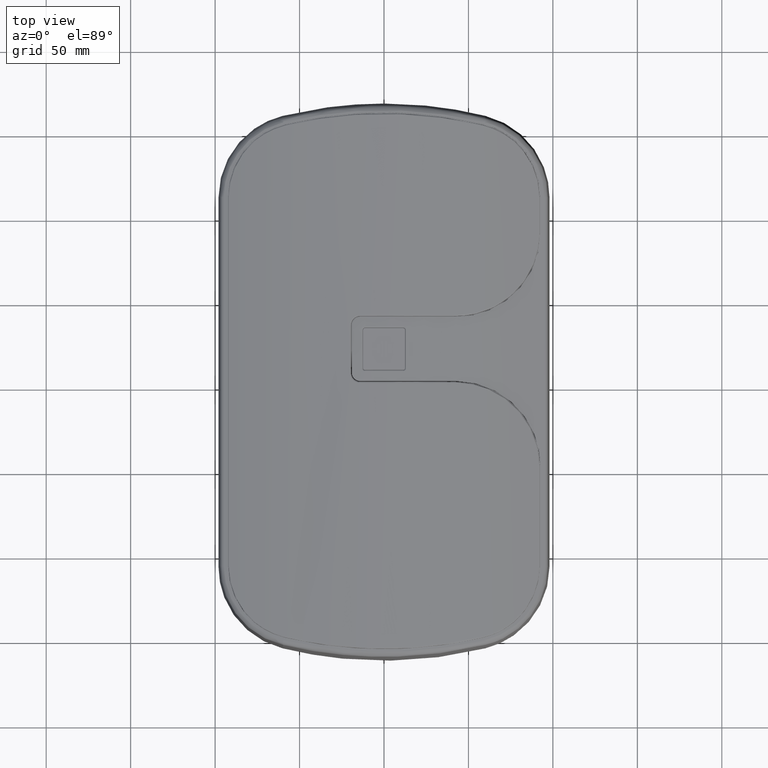
[diagram: clean part render]
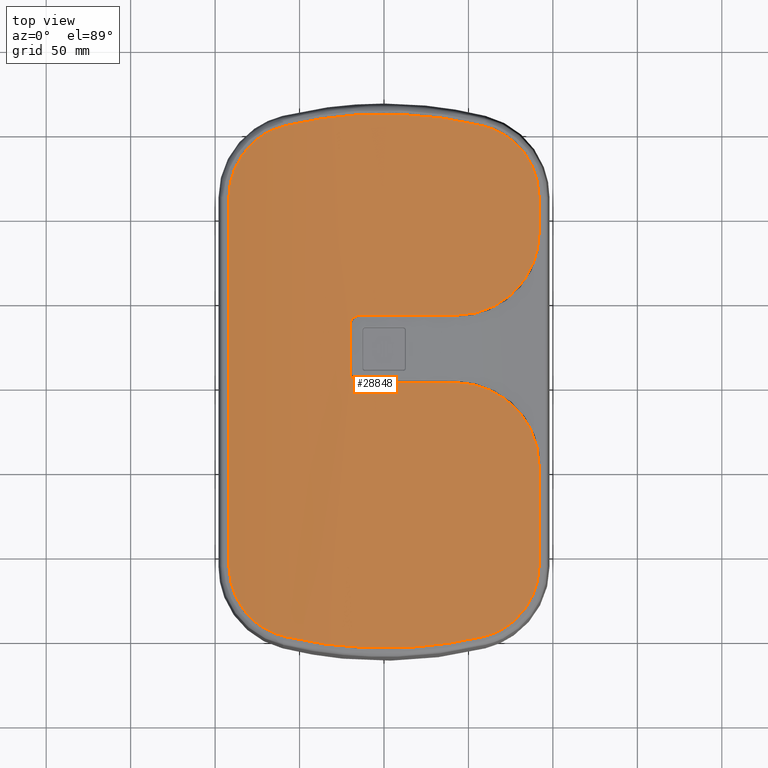
[diagram: same view with one face highlighted and labeled with its STEP entity id]
A machine part, top view. The second image highlights one B-rep face of the part: STEP entity #28848.
In plain terms, the highlighted cylindrical surface (partial cylindrical patch) has radius 340.833 mm, axis along (-0, -1, -0).
Its self-contained STEP definition (entity closure, byte-faithful):
#180 = B_SPLINE_CURVE_WITH_KNOTS ( 'NONE', 3,
 ( #18900, #15692, #16213, #29681, #34477, #10530, #28996, #21549, #1986, #4647, #18728, #16023, #20880, #4998, #23704, #5170, #24210, #23864, #10350 ),
 .UNSPECIFIED., .F., .F.,
 ( 4, 2, 1, 1, 2, 2, 1, 1, 1, 2, 2, 4 ),
 ( 0.0000000000000000000, 0.2499999999999925615, 0.3749999999999895639, 0.4374999999999872879, 0.4687499999999863998, 0.4999999999999854561, 0.6249999999999800160, 0.6874999999999780176, 0.7187499999999769074, 0.7343749999999762412, 0.7499999999999755751, 1.000000000000000000 ),
 .UNSPECIFIED. ) ;
#210 = B_SPLINE_CURVE_WITH_KNOTS ( 'NONE', 3,
 ( #6044, #30554, #9239, #6389, #8701, #33562, #14242, #33209, #1402, #23128, #17619, #25763, #30913, #11573, #17081, #3554, #27896, #31084, #4088, #33385, #22424, #30372, #22605, #9428, #28428, #25243, #25064, #25588, #14946, #12292, #685, #22775, #875, #11764, #19948 ),
 .UNSPECIFIED., .F., .F.,
 ( 4, 2, 1, 2, 2, 2, 2, 2, 2, 2, 2, 2, 2, 2, 2, 2, 2, 4 ),
 ( 0.0000000000000000000, 0.06250000000000177636, 0.09375000000000263678, 0.1093750000000031086, 0.1250000000000035805, 0.1875000000000033029, 0.2187500000000025258, 0.2500000000000017208, 0.3125000000000009992, 0.3750000000000002776, 0.4374999999999995559, 0.4687499999999992784, 0.4999999999999990008, 0.5624999999999984457, 0.5937499999999984457, 0.6249999999999984457, 0.7499999999999990008, 1.000000000000000000 ),
 .UNSPECIFIED. ) ;
#238 = LINE ( 'NONE', #6123, #13790 ) ;
#308 = CARTESIAN_POINT ( 'NONE',  ( 76.68799918922830727, 193.9389659264971328, 271.0104957620693540 ) ) ;
#357 = CARTESIAN_POINT ( 'NONE',  ( 87.36874724670538228, 22.23769931428293489, 268.3623747308501493 ) ) ;
#418 = CARTESIAN_POINT ( 'NONE',  ( -17.37425418541295130, 209.3244417288601653, 279.3158274080151386 ) ) ;
#584 = CARTESIAN_POINT ( 'NONE',  ( 24.61649829016718982, 208.7567562130933538, 278.8959626620090830 ) ) ;
#634 = CARTESIAN_POINT ( 'NONE',  ( -90.76280142288830177, 170.4103326434474752, 267.4428839949293319 ) ) ;
#638 = CARTESIAN_POINT ( 'NONE',  ( 68.40734883334357619, 199.4377215384564863, 272.8146044250892146 ) ) ;
#682 = CARTESIAN_POINT ( 'NONE',  ( -29.70508391770396273, -104.5902902735330855, 278.4531051502877403 ) ) ;
#685 = CARTESIAN_POINT ( 'NONE',  ( -84.80941922142089595, -81.10653978289654731, 269.0309098637925445 ) ) ;
#760 = CARTESIAN_POINT ( 'NONE',  ( -91.80039823595464554, 716.8257402209086422, 267.1544585109640479 ) ) ;
#768 = CARTESIAN_POINT ( 'NONE',  ( -39.40837156193342850, 207.0178400503037324, 277.6047847346223989 ) ) ;
#821 = CARTESIAN_POINT ( 'NONE',  ( -90.63298227369914173, 170.9805897523463614, 267.4787267460807243 ) ) ;
#875 = CARTESIAN_POINT ( 'NONE',  ( -81.14456246344516899, -86.09783526985506796, 269.9553588846289927 ) ) ;
#892 = CARTESIAN_POINT ( 'NONE',  ( 91.62914806645278532, 5.897594693806634147, 267.2023055332355170 ) ) ;
#895 = CARTESIAN_POINT ( 'NONE',  ( 65.10626593037738985, 96.21806662829801837, 273.4740860651526191 ) ) ;
#925 = CARTESIAN_POINT ( 'NONE',  ( 82.06775386203671019, -84.86934508408329236, 269.7235336977278735 ) ) ;
#958 = CARTESIAN_POINT ( 'NONE',  ( -29.06866651269853108, 208.2359990475847553, 278.5081823524531615 ) ) ;
#1010 = CARTESIAN_POINT ( 'NONE',  ( -83.92475419055244856, 185.9471982838221606, 269.2561863649057727 ) ) ;
#1086 = CARTESIAN_POINT ( 'NONE',  ( 79.04313283722761696, 191.9087714289362623, 270.4666428284601238 ) ) ;
#1177 = CARTESIAN_POINT ( 'NONE',  ( -18.88950869241952901, 88.49497091314722752, 279.2262256043080129 ) ) ;
#1356 = CARTESIAN_POINT ( 'NONE',  ( -87.12384022147475093, 180.6153879183635240, 268.4268167469981563 ) ) ;
#1402 = CARTESIAN_POINT ( 'NONE',  ( -91.45593707571909192, -62.91477150450725020, 267.2506133946380942 ) ) ;
#1416 = CARTESIAN_POINT ( 'NONE',  ( 52.67000237479042823, 49.81003932491675812, 275.6558401828824572 ) ) ;
#1432 = CARTESIAN_POINT ( 'NONE',  ( 87.13276900156556337, 180.5953604990357917, 268.4244563308851070 ) ) ;
#1436 = CARTESIAN_POINT ( 'NONE',  ( -14.31743432733208721, 50.82574022090865640, 279.4492068892120074 ) ) ;
#1496 = CARTESIAN_POINT ( 'NONE',  ( -76.67944016011402653, -90.37711716577501875, 271.0124728105930103 ) ) ;
#1573 = CARTESIAN_POINT ( 'NONE',  ( 9.976607764461711270, -106.1915144008146399, 279.6397174452580998 ) ) ;
#1701 = CARTESIAN_POINT ( 'NONE',  ( -17.78010489295164831, 89.58719500805307234, 279.2859542890566900 ) ) ;
#1766 = CARTESIAN_POINT ( 'NONE',  ( 82.65086082515425403, 111.3277722993156686, 269.5770601667944675 ) ) ;
#1779 = CARTESIAN_POINT ( 'NONE',  ( 86.39960574663949444, 181.9708492919632477, 268.6173014622281698 ) ) ;
#1962 = CARTESIAN_POINT ( 'NONE',  ( -20.12952987267379257, 56.82574022090877719, 279.1550582955427444 ) ) ;
#1976 = CARTESIAN_POINT ( 'NONE',  ( 90.63367163953246575, -67.40852314878009111, 267.4785365789553566 ) ) ;
#1986 = CARTESIAN_POINT ( 'NONE',  ( 67.93218113800165270, -96.10806116518594422, 272.9116025135941186 ) ) ;
#2290 = CARTESIAN_POINT ( 'NONE',  ( 72.52278384399234312, 100.8944758625074343, 271.9450602917116839 ) ) ;
#2651 = VERTEX_POINT ( 'NONE', #28267 ) ;
#2701 = CARTESIAN_POINT ( 'NONE',  ( -73.94742326272721300, 196.1074039615511992, 271.6347033646500222 ) ) ;
#2706 = CARTESIAN_POINT ( 'NONE',  ( 91.80039823595328130, 716.8257402209086422, 267.1544585109644458 ) ) ;
#3032 = CARTESIAN_POINT ( 'NONE',  ( 83.51476960828456697, 29.07257103280700505, 269.3597898726873723 ) ) ;
#3095 = CARTESIAN_POINT ( 'NONE',  ( 8.550862452208136233, 209.7855142365778534, 279.6584254422802474 ) ) ;
#3323 = CARTESIAN_POINT ( 'NONE',  ( -81.06026227929633876, 189.6333353183163126, 269.9722491619719449 ) ) ;
#3389 = CARTESIAN_POINT ( 'NONE',  ( 60.20206707563944803, 94.03446883711401938, 274.3914376323284614 ) ) ;
#3501 = CARTESIAN_POINT ( 'NONE',  ( -20.11457119169391206, 85.31732716460824406, 279.1559439562137754 ) ) ;
#3552 = CARTESIAN_POINT ( 'NONE',  ( -24.61649827833684512, -105.1876165311996232, 278.8959626630357889 ) ) ;
#3554 = CARTESIAN_POINT ( 'NONE',  ( -90.41968414508967555, -68.30127389348253075, 267.5375557167562874 ) ) ;
#3569 = CARTESIAN_POINT ( 'NONE',  ( 90.48332129391738476, 13.11217150527422604, 267.5200328474227263 ) ) ;
#3637 = CARTESIAN_POINT ( 'NONE',  ( 19.67509183181243060, 209.1906668277755443, 279.2176186939121294 ) ) ;
#3740 = CARTESIAN_POINT ( 'NONE',  ( 58.61447888059210243, -99.46847671055455464, 274.6720879254998522 ) ) ;
#3789 = CARTESIAN_POINT ( 'NONE',  ( 79.46747595218840843, -87.76053333932027556, 270.3568301736707440 ) ) ;
#3867 = CARTESIAN_POINT ( 'NONE',  ( -91.46188508367075087, 167.2224045834305173, 267.2496977933237190 ) ) ;
#3871 = CARTESIAN_POINT ( 'NONE',  ( 68.97662801584505132, 199.1413470976222015, 272.6974675991566528 ) ) ;
#3896 = ORIENTED_EDGE ( 'NONE', *, *, #13371, .T. ) ;
#3930 = DIRECTION ( 'NONE',  ( -1.000000000000000000, 0.0000000000000000000, -6.107583876299749000E-17 ) ) ;
#4004 = CARTESIAN_POINT ( 'NONE',  ( -70.83104269986652923, -94.54797002169556208, 272.3102982337897515 ) ) ;
#4034 = CARTESIAN_POINT ( 'NONE',  ( -83.47228973901795257, 186.5801029449357031, 269.3708583639246399 ) ) ;
#4088 = CARTESIAN_POINT ( 'NONE',  ( -89.27499177496670768, -72.03407576089556130, 267.8504038477969402 ) ) ;
#4281 = CARTESIAN_POINT ( 'NONE',  ( 81.57513947483437278, 109.8770051119347926, 269.8443071936214324 ) ) ;
#4286 = VERTEX_POINT ( 'NONE', #25082 ) ;
#4293 = CARTESIAN_POINT ( 'NONE',  ( 91.71415591415666313, 163.7354377861800003, 267.1785670103382699 ) ) ;
#4296 = CARTESIAN_POINT ( 'NONE',  ( -16.05935190818515679, 51.13807629184560000, 279.3716435360718151 ) ) ;
#4322 = EDGE_CURVE ( 'Defeatured_0_62+Defeatured_0_56+Defeatured_0_55+Defeatured_0_57', #2651, #17392, #23360, .T. ) ;
#4388 = CARTESIAN_POINT ( 'NONE',  ( -15.48878150163819889, 90.66597889438411073, 279.3978964078979175 ) ) ;
#4451 = CARTESIAN_POINT ( 'NONE',  ( 73.46353497430000346, 101.6294991978293609, 271.7387983361865622 ) ) ;
#4500 = CARTESIAN_POINT ( 'NONE',  ( 91.80039823595322446, 139.8257402209086990, 267.1544585109638774 ) ) ;
#4547 = CARTESIAN_POINT ( 'NONE',  ( -16.23933632490672707, 90.43919168324016766, 279.3629596419751238 ) ) ;
#4611 = CARTESIAN_POINT ( 'NONE',  ( 77.89285408268844435, 105.6391529552340955, 270.7304731091211352 ) ) ;
#4622 = CARTESIAN_POINT ( 'NONE',  ( 81.15081374347427356, 189.6597080092009548, 269.9538199759346071 ) ) ;
#4647 = CARTESIAN_POINT ( 'NONE',  ( 68.87828713001383107, -95.63270577971108821, 272.7186130128378636 ) ) ;
#4788 = CARTESIAN_POINT ( 'NONE',  ( 87.19424864678948950, 119.0948466550250231, 268.4080260344707654 ) ) ;
#4815 = CARTESIAN_POINT ( 'NONE',  ( 91.46208497095102530, -63.65140897428998557, 267.2496412220894513 ) ) ;
#4998 = CARTESIAN_POINT ( 'NONE',  ( 72.16513649310989820, -93.70570313952015340, 272.0225995072847809 ) ) ;
#5170 = CARTESIAN_POINT ( 'NONE',  ( 72.43124988592244051, -93.53326878609591688, 271.9648367050008346 ) ) ;
#5180 = ORIENTED_EDGE ( 'NONE', *, *, #12177, .T. ) ;
#5700 = CARTESIAN_POINT ( 'NONE',  ( 83.62692147184122859, 28.90442114273854202, 269.3314243581442042 ) ) ;
#5724 = DIRECTION ( 'NONE',  ( 2.465190328815662439E-32, 1.000000000000000000, 4.287526199837192785E-16 ) ) ;
#5768 = CARTESIAN_POINT ( 'NONE',  ( 29.70508391752874644, 208.1594299553968028, 278.4531051503030312 ) ) ;
#5817 = CARTESIAN_POINT ( 'NONE',  ( 61.92596261249799738, 202.1480092797817747, 274.0811413834800305 ) ) ;
#6044 = CARTESIAN_POINT ( 'NONE',  ( -91.80039823595630821, -57.41042204819591888, 267.1544585109629679 ) ) ;
#6060 = CARTESIAN_POINT ( 'NONE',  ( 91.47153832139305507, 7.520347295306567759, 267.2462662620528135 ) ) ;
#6062 = CARTESIAN_POINT ( 'NONE',  ( 58.89457761810159298, 93.54928987540823471, 274.6245804713976781 ) ) ;
#6123 = CARTESIAN_POINT ( 'NONE',  ( -20.12952987267377125, 716.8257402209086422, 279.1550582955433697 ) ) ;
#6164 = CARTESIAN_POINT ( 'NONE',  ( -89.02489269238108704, 176.3459706191032694, 267.9184922595794092 ) ) ;
#6212 = CARTESIAN_POINT ( 'NONE',  ( -58.61455370244137697, -99.46845897619520827, 274.6720762768379132 ) ) ;
#6230 = CARTESIAN_POINT ( 'NONE',  ( 91.08888619553589194, 10.13139278047225211, 267.3526353448422697 ) ) ;
#6339 = CARTESIAN_POINT ( 'NONE',  ( -84.57718240507578855, 184.9810813627109667, 269.0895179277074476 ) ) ;
#6389 = CARTESIAN_POINT ( 'NONE',  ( -91.71410370426964676, -60.16714428988370855, 267.1785815983476482 ) ) ;
#6407 = CARTESIAN_POINT ( 'NONE',  ( 85.52165409045568367, 25.81902037371650138, 268.8463039573406377 ) ) ;
#6409 = CARTESIAN_POINT ( 'NONE',  ( 55.47089037011711810, 92.48164767221774696, 275.2093020809271593 ) ) ;
#6620 = CARTESIAN_POINT ( 'NONE',  ( 86.01714546023512753, -79.09306881075431761, 268.7174911862554154 ) ) ;
#6698 = CARTESIAN_POINT ( 'NONE',  ( -85.20773213207786512, 184.0009978337323275, 268.9273482388512093 ) ) ;
#6761 = CARTESIAN_POINT ( 'NONE',  ( 51.54692865194429174, 91.62610497823723676, 275.8295869635753661 ) ) ;
#6911 = CARTESIAN_POINT ( 'NONE',  ( 49.06351699970627323, -101.7398205202654395, 276.3394480155509427 ) ) ;
#6945 = CARTESIAN_POINT ( 'NONE',  ( -16.60564660076042998, 51.36464628176582181, 279.3452889195697821 ) ) ;
#6953 = CIRCLE ( 'NONE', #26810, 340.8333333333339965 ) ;
#6991 = B_SPLINE_CURVE_WITH_KNOTS ( 'NONE', 3,
 ( #23336, #7151, #14472, #27947, #3789, #25289, #925, #11813, #33431, #14654, #11989, #22824, #33608, #6620, #18365, #7662, #29159, #13025, #18550, #29331, #28989, #10523, #15502, #1976, #32152, #18190, #31658, #4815, #24028, #29503 ),
 .UNSPECIFIED., .F., .F.,
 ( 4, 2, 2, 2, 2, 2, 2, 2, 2, 2, 2, 1, 1, 2, 2, 4 ),
 ( 0.0000000000000000000, 0.06249999999999848732, 0.1249999999999969746, 0.2499999999999940048, 0.3124999999999928946, 0.3437499999999927836, 0.3749999999999926725, 0.4374999999999930056, 0.4999999999999933387, 0.6249999999999940048, 0.6874999999999935607, 0.7187499999999930056, 0.7343749999999928946, 0.7421874999999925615, 0.7499999999999922284, 1.000000000000000000 ),
 .UNSPECIFIED. ) ;
#7012 = CARTESIAN_POINT ( 'NONE',  ( -61.92413691933446529, -98.57941976663293815, 274.0814743387689987 ) ) ;
#7049 = CARTESIAN_POINT ( 'NONE',  ( -15.67881826664019052, 90.61786003869598005, 279.3891983285736274 ) ) ;
#7119 = CARTESIAN_POINT ( 'NONE',  ( 90.67748054275763536, 129.4017392241811422, 267.4664460634838861 ) ) ;
#7136 = CARTESIAN_POINT ( 'NONE',  ( -19.32848428277108255, 53.81463653949219861, 279.2015740354344189 ) ) ;
#7151 = CARTESIAN_POINT ( 'NONE',  ( 77.21506182969284282, -89.91606537398051557, 270.8888995555542465 ) ) ;
#7253 = B_SPLINE_CURVE_WITH_KNOTS ( 'NONE', 3,
 ( #9269, #20153, #28803, #4293, #11969, #22805, #20329, #26140, #14973, #23320, #28287, #15486, #23496, #22981, #14806, #12320, #20855, #9620, #33593, #17816, #9452, #28971, #17644, #31114, #28626, #1432, #31639, #1779, #15320, #12486, #12654, #18174, #4622, #1086, #20666 ),
 .UNSPECIFIED., .F., .F.,
 ( 4, 2, 1, 2, 2, 2, 2, 2, 2, 2, 2, 2, 2, 2, 2, 2, 2, 4 ),
 ( 0.0000000000000000000, 0.06250000000001540434, 0.09375000000002207956, 0.1093750000000243139, 0.1250000000000265621, 0.1875000000000287270, 0.2187500000000288103, 0.2500000000000289213, 0.3125000000000288103, 0.3750000000000288103, 0.4375000000000287548, 0.4687500000000286993, 0.5000000000000286438, 0.5625000000000266454, 0.5937500000000250910, 0.6250000000000235367, 0.7500000000000152101, 1.000000000000000000 ),
 .UNSPECIFIED. ) ;
#7288 = CARTESIAN_POINT ( 'NONE',  ( 77.87123646027090729, 36.02584724460913179, 270.7350694207714241 ) ) ;
#7291 = CARTESIAN_POINT ( 'NONE',  ( 75.30510914115400567, 103.1669895229156992, 271.3277709842609511 ) ) ;
#7458 = CARTESIAN_POINT ( 'NONE',  ( 65.46184198693040912, 96.40225256617091532, 273.4046886706706232 ) ) ;
#7631 = CARTESIAN_POINT ( 'NONE',  ( 91.80039823595329551, 136.5831941621322585, 267.1544585109639911 ) ) ;
#7649 = CARTESIAN_POINT ( 'NONE',  ( -14.12071498530851876, 50.82574022090877008, 279.4573639693576865 ) ) ;
#7662 = CARTESIAN_POINT ( 'NONE',  ( 87.12656412275023854, -77.04085774038794909, 268.4260962830496737 ) ) ;
#7722 = EDGE_CURVE ( 'Defeatured_0_62+Defeatured_0_45+Defeatured_0_44+Defeatured_0_46', #30208, #13260, #28746, .T. ) ;
#8364 = CARTESIAN_POINT ( 'NONE',  ( -8.550862436792149524, -106.2163745546372269, 279.6584254426270491 ) ) ;
#8382 = CARTESIAN_POINT ( 'NONE',  ( 84.49514656095026055, 27.55099091542546574, 269.1105153228839413 ) ) ;
#8438 = CARTESIAN_POINT ( 'NONE',  ( 53.82582120230703282, 204.1764874074880254, 275.5080701929400107 ) ) ;
#8611 = CARTESIAN_POINT ( 'NONE',  ( -25.37914783894046522, 208.6398078832624776, 278.8077145601374696 ) ) ;
#8700 = CARTESIAN_POINT ( 'NONE',  ( -53.82582119059794223, -100.6073477283676851, 275.5080701949794388 ) ) ;
#8701 = CARTESIAN_POINT ( 'NONE',  ( -91.67365147038700002, -60.75758624500722505, 267.1898833138289433 ) ) ;
#8873 = VECTOR ( 'NONE', #13971, 1000.000000000000000 ) ;
#8892 = CARTESIAN_POINT ( 'NONE',  ( -38.09476931666471700, -103.4796755502908354, 277.6299012247234828 ) ) ;
#8912 = CARTESIAN_POINT ( 'NONE',  ( 91.59309219087296583, 6.305152286372177173, 267.2123671020050324 ) ) ;
#8914 = CARTESIAN_POINT ( 'NONE',  ( 63.32019671777439385, 95.33676034280551903, 273.8179196419703203 ) ) ;
#9014 = CARTESIAN_POINT ( 'NONE',  ( -20.04725634528074707, 85.80751498537048860, 279.1599161936376845 ) ) ;
#9190 = CARTESIAN_POINT ( 'NONE',  ( -77.20691116739256188, 193.4923909501362402, 270.8907958208945956 ) ) ;
#9239 = CARTESIAN_POINT ( 'NONE',  ( -91.77882594071905942, -58.98605093998769178, 267.1604940682042866 ) ) ;
#9254 = CARTESIAN_POINT ( 'NONE',  ( 42.72840998913642352, 50.82574022090877008, 277.0610797373246896 ) ) ;
#9269 = CARTESIAN_POINT ( 'NONE',  ( 91.80039823595471660, 160.9795617301376751, 267.1544585109635364 ) ) ;
#9375 = CARTESIAN_POINT ( 'NONE',  ( 70.83744981342726987, 198.1133260507670286, 272.3089383999616189 ) ) ;
#9389 = B_SPLINE_CURVE_WITH_KNOTS ( 'NONE', 3,
 ( #25373, #27848, #3501, #14370, #9014, #25193, #22555, #11890, #33509, #20073, #30863, #28210, #1177, #12063, #20254, #21279, #1701, #13095, #9899, #34539, #4547, #25895, #7049, #4388, #23418, #28725, #15756, #23928 ),
 .UNSPECIFIED., .F., .F.,
 ( 4, 1, 2, 2, 2, 2, 2, 2, 2, 2, 2, 1, 2, 2, 4 ),
 ( 0.0000000000000000000, 0.06250000000000553724, 0.09375000000000610623, 0.1250000000000066891, 0.2500000000000051070, 0.3125000000000041633, 0.3750000000000031086, 0.5000000000000005551, 0.5624999999999997780, 0.6249999999999988898, 0.7499999999999995559, 0.8124999999999997780, 0.8437499999999992228, 0.8749999999999986677, 1.000000000000000000 ),
 .UNSPECIFIED. ) ;
#9428 = CARTESIAN_POINT ( 'NONE',  ( -87.96207469446881078, -75.27974831987928894, 268.2038708026267955 ) ) ;
#9441 = CARTESIAN_POINT ( 'NONE',  ( 53.06028804235201335, 49.72771956058492293, 275.5945631247015513 ) ) ;
#9452 = CARTESIAN_POINT ( 'NONE',  ( 88.57782897465537530, 177.4141886737620837, 268.0387586672480325 ) ) ;
#9537 = ORIENTED_EDGE ( 'NONE', *, *, #29857, .T. ) ;
#9548 = CARTESIAN_POINT ( 'NONE',  ( -86.01379555123696719, 182.6680317046100868, 268.7183651679248442 ) ) ;
#9608 = CARTESIAN_POINT ( 'NONE',  ( 56.16392783191381710, 48.95930254309330110, 275.0915955166150297 ) ) ;
#9610 = CARTESIAN_POINT ( 'NONE',  ( 46.75273532309554980, 90.94486427781330917, 276.5349769940303304 ) ) ;
#9620 = CARTESIAN_POINT ( 'NONE',  ( 89.77386460797391976, 174.1196043034916840, 267.7145996975006597 ) ) ;
#9625 = CARTESIAN_POINT ( 'NONE',  ( -14.61206167616331264, 50.84060088952431755, 279.4367338719943064 ) ) ;
#9643 = ORIENTED_EDGE ( 'NONE', *, *, #11067, .T. ) ;
#9667 = CARTESIAN_POINT ( 'NONE',  ( 91.80039823595357973, -57.41042204807841642, 267.1544585109637069 ) ) ;
#9782 = CARTESIAN_POINT ( 'NONE',  ( 74.98584049518311190, 38.78472285713493051, 271.4014308839314822 ) ) ;
#9784 = CARTESIAN_POINT ( 'NONE',  ( 83.22329910517477458, 112.1488510134593923, 269.4333188619124826 ) ) ;
#9864 = CARTESIAN_POINT ( 'NONE',  ( -75.38108959997531144, -91.46995956471288025, 271.3122563277727295 ) ) ;
#9887 = VECTOR ( 'NONE', #5724, 1000.000000000000000 ) ;
#9899 = CARTESIAN_POINT ( 'NONE',  ( -17.13085134568913759, 90.02918036622131126, 279.3193721034191981 ) ) ;
#9969 = CARTESIAN_POINT ( 'NONE',  ( 77.59064344889974052, 36.31093860380931915, 270.8007939209275605 ) ) ;
#9971 = CARTESIAN_POINT ( 'NONE',  ( 83.33540286543404818, 112.3130732524038109, 269.4050706713380237 ) ) ;
#9988 = CARTESIAN_POINT ( 'NONE',  ( -18.09271053174354194, 52.30679241144147795, 279.2695588419631463 ) ) ;
#10144 = CARTESIAN_POINT ( 'NONE',  ( 74.39521738107825399, 102.3882571698704140, 271.5322368033890257 ) ) ;
#10311 = CARTESIAN_POINT ( 'NONE',  ( 86.31497491468637406, 117.2985041322894375, 268.6396414612947297 ) ) ;
#10350 = CARTESIAN_POINT ( 'NONE',  ( 76.62390279318167075, -90.42375090111909230, 271.0252904860104195 ) ) ;
#10523 = CARTESIAN_POINT ( 'NONE',  ( 90.32453036403283875, -68.64168762257261847, 267.5636689269069279 ) ) ;
#10530 = CARTESIAN_POINT ( 'NONE',  ( 66.79557975923367508, -96.65505529241382021, 273.1411059051852135 ) ) ;
#10534 = VERTEX_POINT ( 'NONE', #27001 ) ;
#10642 = CARTESIAN_POINT ( 'NONE',  ( 91.80039823595471660, 160.9795617301376751, 267.1544585109635364 ) ) ;
#10921 = VERTEX_POINT ( 'NONE', #10642 ) ;
#11044 = CARTESIAN_POINT ( 'NONE',  ( -31.69057127673626084, -104.3493641483259324, 278.2744833532634630 ) ) ;
#11067 = EDGE_CURVE ( 'Defeatured_0_62+Defeatured_0_43+Defeatured_0_42+Defeatured_0_44', #21428, #34224, #25490, .T. ) ;
#11078 = CARTESIAN_POINT ( 'NONE',  ( -67.73972311248158462, 199.7721206989395739, 272.9506893759927948 ) ) ;
#11125 = DIRECTION ( 'NONE',  ( 2.465190328815662439E-32, 1.000000000000000000, 4.287526199837192785E-16 ) ) ;
#11130 = CARTESIAN_POINT ( 'NONE',  ( -20.12952987267379257, 56.82574022090877719, 279.1550582955427444 ) ) ;
#11134 = ORIENTED_EDGE ( 'NONE', *, *, #27256, .T. ) ;
#11182 = LINE ( 'NONE', #22033, #30401 ) ;
#11349 = CARTESIAN_POINT ( 'NONE',  ( 69.54046607669637581, 198.8408840772033841, 272.5807804943150359 ) ) ;
#11517 = CARTESIAN_POINT ( 'NONE',  ( -90.47278840836675329, 171.6458764004125044, 267.5228931162566823 ) ) ;
#11573 = CARTESIAN_POINT ( 'NONE',  ( -90.86102320938883281, -66.39698602819559881, 267.4157430883869324 ) ) ;
#11592 = CARTESIAN_POINT ( 'NONE',  ( 61.12928203748523259, 94.40063635564236222, 274.2234029888016380 ) ) ;
#11661 = CARTESIAN_POINT ( 'NONE',  ( -21.07111192011748813, 209.0521899019858552, 279.1137106714915035 ) ) ;
#11711 = CARTESIAN_POINT ( 'NONE',  ( -91.80039823595460291, 164.1110155724917945, 267.1544585109636500 ) ) ;
#11764 = CARTESIAN_POINT ( 'NONE',  ( -79.03574681800658652, -88.34705400936495323, 270.4684122795455323 ) ) ;
#11777 = CARTESIAN_POINT ( 'NONE',  ( 2.370788750502654124E-15, 716.8257402209087559, -61.08333333335075110 ) ) ;
#11779 = CARTESIAN_POINT ( 'NONE',  ( 90.66308491075841403, 12.32389336772854982, 267.4704581459999986 ) ) ;
#11813 = CARTESIAN_POINT ( 'NONE',  ( 83.47705903901926661, -83.00442708301186201, 269.3696532203327365 ) ) ;
#11842 = CARTESIAN_POINT ( 'NONE',  ( -29.37599457994389951, 208.2003390000504623, 278.4817353074728317 ) ) ;
#11890 = CARTESIAN_POINT ( 'NONE',  ( -19.81515790821682543, 86.76569058830047254, 279.1735457048191051 ) ) ;
#11956 = CARTESIAN_POINT ( 'NONE',  ( 55.00536882712562203, 49.27869627751986314, 275.2838057512505543 ) ) ;
#11969 = CARTESIAN_POINT ( 'NONE',  ( 91.67372815568178623, 164.3257002485749467, 267.1898618949255706 ) ) ;
#11989 = CARTESIAN_POINT ( 'NONE',  ( 84.79431739389903555, -81.08090235909750731, 269.0338144381738630 ) ) ;
#12063 = CARTESIAN_POINT ( 'NONE',  ( -18.64139435479129148, 88.79748169579487183, 279.2399480996979833 ) ) ;
#12125 = CARTESIAN_POINT ( 'NONE',  ( 60.72233717552690280, 47.41965089262379252, 274.2981249820631433 ) ) ;
#12177 = EDGE_CURVE ( 'Defeatured_0_62+Defeatured_0_46+Defeatured_0_45+Defeatured_0_47', #13260, #13166, #25564, .T. ) ;
#12240 = CARTESIAN_POINT ( 'NONE',  ( -86.39647363306407613, 181.9897689750805512, 268.6182770428837330 ) ) ;
#12292 = CARTESIAN_POINT ( 'NONE',  ( -85.81448502098676556, -79.42921094745412347, 268.7700862322849957 ) ) ;
#12309 = CARTESIAN_POINT ( 'NONE',  ( 58.46651238030606379, 48.24358446630684227, 274.6987615444637640 ) ) ;
#12320 = CARTESIAN_POINT ( 'NONE',  ( 90.42051915284704933, 171.8671636535009100, 267.5373258780657011 ) ) ;
#12324 = CARTESIAN_POINT ( 'NONE',  ( -19.00250565006369996, 53.32547614118836776, 279.2198810714881461 ) ) ;
#12486 = CARTESIAN_POINT ( 'NONE',  ( 85.81807393691732955, 182.9922359303725443, 268.7691524471927664 ) ) ;
#12644 = CARTESIAN_POINT ( 'NONE',  ( 77.04383964381077021, 104.7962917094448727, 270.9282512868542199 ) ) ;
#12654 = CARTESIAN_POINT ( 'NONE',  ( 84.81357885966390597, 184.6692397484939363, 269.0298400055505113 ) ) ;
#12658 = CARTESIAN_POINT ( 'NONE',  ( -17.12863381070165048, 51.63235437082117585, 279.3193707397719550 ) ) ;
#12847 = CARTESIAN_POINT ( 'NONE',  ( -20.12952987267377125, 56.43181408896884221, 279.1550582955429149 ) ) ;
#12999 = CARTESIAN_POINT ( 'NONE',  ( 90.40612988985058962, 128.2231482848514474, 267.5412296105438372 ) ) ;
#13025 = CARTESIAN_POINT ( 'NONE',  ( 88.44919886869989512, -74.22703890577169261, 268.0740096920045517 ) ) ;
#13095 = CARTESIAN_POINT ( 'NONE',  ( -17.62047014351335505, 89.70454677072969218, 279.2942611839443430 ) ) ;
#13165 = CARTESIAN_POINT ( 'NONE',  ( 86.67713304595304180, 118.0115786429434905, 268.5445824355238074 ) ) ;
#13166 = VERTEX_POINT ( 'NONE', #20512 ) ;
#13210 = ORIENTED_EDGE ( 'NONE', *, *, #26071, .T. ) ;
#13260 = VERTEX_POINT ( 'NONE', #15856 ) ;
#13371 = EDGE_CURVE ( 'Defeatured_0_62+Defeatured_0_42+Defeatured_0_61+Defeatured_0_43', #4286, #21428, #17908, .T. ) ;
#13405 = CARTESIAN_POINT ( 'NONE',  ( -75.31444238393254409, 195.0913874444125042, 271.3273743300801470 ) ) ;
#13413 = EDGE_CURVE ( 'Defeatured_0_62+Defeatured_0_54+Defeatured_0_53+Defeatured_0_55', #29268, #22666, #9389, .T. ) ;
#13562 = ORIENTED_EDGE ( 'NONE', *, *, #4322, .T. ) ;
#13715 = CARTESIAN_POINT ( 'NONE',  ( -33.82781546657388105, -104.0749025882062426, 278.0710159571415261 ) ) ;
#13752 = LINE ( 'NONE', #2706, #9887 ) ;
#13790 = VECTOR ( 'NONE', #11125, 1000.000000000000000 ) ;
#13971 = DIRECTION ( 'NONE',  ( -2.465190328815662439E-32, -1.000000000000000000, -4.287526199837192785E-16 ) ) ;
#13977 = CARTESIAN_POINT ( 'NONE',  ( 4.842229437117650193, 209.8657283927257708, 279.7178434941259866 ) ) ;
#14098 = ORIENTED_EDGE ( 'NONE', *, *, #24536, .T. ) ;
#14196 = CARTESIAN_POINT ( 'NONE',  ( -82.06220888138162195, 188.4452970693942859, 269.7249108179566974 ) ) ;
#14240 = CARTESIAN_POINT ( 'NONE',  ( -29.85670458129710525, -104.5723518883295498, 278.4398055790485387 ) ) ;
#14242 = CARTESIAN_POINT ( 'NONE',  ( -91.58330112592618377, -61.74135946404294373, 267.2150986613415853 ) ) ;
#14324 = CARTESIAN_POINT ( 'NONE',  ( 41.73862552851811358, 206.4592424795254431, 277.1935028022924143 ) ) ;
#14370 = CARTESIAN_POINT ( 'NONE',  ( -20.07717413454387057, 85.61151980694776853, 279.1581521066659661 ) ) ;
#14374 = CARTESIAN_POINT ( 'NONE',  ( 68.59895963288816745, 199.3391340973817307, 272.7752909687150122 ) ) ;
#14428 = CARTESIAN_POINT ( 'NONE',  ( 2.370788750502638742E-15, 90.82574022090881272, -61.08333333335097848 ) ) ;
#14438 = CARTESIAN_POINT ( 'NONE',  ( 90.08533448386918963, 14.67853801753575738, 267.6293622058436199 ) ) ;
#14440 = CARTESIAN_POINT ( 'NONE',  ( 44.34116020587023144, 90.82574022090857113, 276.8572903213029690 ) ) ;
#14472 = CARTESIAN_POINT ( 'NONE',  ( 77.79199055759515602, -89.39297399738951810, 270.7541293866178762 ) ) ;
#14504 = CARTESIAN_POINT ( 'NONE',  ( 2.369958631033723506, 209.9010401409085489, 279.7440021446033711 ) ) ;
#14605 = CARTESIAN_POINT ( 'NONE',  ( 28.60764587830745853, -104.7199264240657186, 278.5475401499223267 ) ) ;
#14654 = CARTESIAN_POINT ( 'NONE',  ( 84.58133838979050267, -81.40567600757205469, 269.0884532170877037 ) ) ;
#14661 = ORIENTED_EDGE ( 'NONE', *, *, #18908, .T. ) ;
#14699 = CARTESIAN_POINT ( 'NONE',  ( -68.97115962353259988, -95.57510638648469126, 272.6985975499790129 ) ) ;
#14735 = CARTESIAN_POINT ( 'NONE',  ( 65.14801542460978112, 200.9722767331127500, 273.4697806021324595 ) ) ;
#14784 = DIRECTION ( 'NONE',  ( 2.465190328815662439E-32, 1.000000000000000000, 4.287526199837192785E-16 ) ) ;
#14794 = CARTESIAN_POINT ( 'NONE',  ( 59.97577913008840511, 47.70626195894262622, 274.4324699132160390 ) ) ;
#14806 = CARTESIAN_POINT ( 'NONE',  ( 90.60903605021182727, 171.1091073868685157, 267.4853721304181136 ) ) ;
#14870 = CARTESIAN_POINT ( 'NONE',  ( -65.14444310010179606, -97.40456675667037700, 273.4704718583868157 ) ) ;
#14944 = CARTESIAN_POINT ( 'NONE',  ( 29.53133963490955338, -104.6130290059675900, 278.4682597376731792 ) ) ;
#14946 = CARTESIAN_POINT ( 'NONE',  ( -86.01231440717660348, -79.08894680737806482, 268.7185500358928039 ) ) ;
#14973 = CARTESIAN_POINT ( 'NONE',  ( 91.45614553386515411, 166.4822350012459822, 267.2505553149510433 ) ) ;
#15145 = CARTESIAN_POINT ( 'NONE',  ( 89.17518107556969653, 123.9340654976432035, 267.8777469231985151 ) ) ;
#15159 = CARTESIAN_POINT ( 'NONE',  ( -20.08975411468816930, 56.03948163311765285, 279.1574185489724869 ) ) ;
#15309 = CARTESIAN_POINT ( 'NONE',  ( 91.80039823595322446, 139.8257402209086990, 267.1544585109638774 ) ) ;
#15320 = CARTESIAN_POINT ( 'NONE',  ( 86.01578557302138961, 182.6520482016141216, 268.7176446670767973 ) ) ;
#15324 = CARTESIAN_POINT ( 'NONE',  ( -16.78308299367047596, 51.44839723156626832, 279.3365825965823319 ) ) ;
#15473 = CARTESIAN_POINT ( 'NONE',  ( 64.37553560560300525, 45.82967970625446696, 273.6183160258884186 ) ) ;
#15475 = CARTESIAN_POINT ( 'NONE',  ( 85.17612878896355255, 115.1865930925282129, 268.9363687436696750 ) ) ;
#15486 = CARTESIAN_POINT ( 'NONE',  ( 91.08974720403621461, 168.8058740868860355, 267.3523909519676067 ) ) ;
#15490 = CARTESIAN_POINT ( 'NONE',  ( -19.74054611777511070, 54.70590909992407802, 279.1778571388903174 ) ) ;
#15502 = CARTESIAN_POINT ( 'NONE',  ( 90.47357206088975090, -68.07362387641511248, 267.5226773284979913 ) ) ;
#15569 = VERTEX_POINT ( 'NONE', #308 ) ;
#15692 = CARTESIAN_POINT ( 'NONE',  ( 60.27828562329009543, -99.07299012423017359, 274.3816305776070408 ) ) ;
#15756 = CARTESIAN_POINT ( 'NONE',  ( -14.51433469161192846, 90.82574022090858534, 279.4410423028746777 ) ) ;
#15856 = CARTESIAN_POINT ( 'NONE',  ( -58.61455370244137697, -99.46845897619520827, 274.6720762768379132 ) ) ;
#16023 = CARTESIAN_POINT ( 'NONE',  ( 71.26868535245552039, -94.27102682719252869, 272.2158914295472414 ) ) ;
#16213 = CARTESIAN_POINT ( 'NONE',  ( 61.90234544022656848, -98.58728961092646159, 274.0853725790033195 ) ) ;
#16402 = CARTESIAN_POINT ( 'NONE',  ( -65.44889102802893888, 200.8282801770924948, 273.4086447810543632 ) ) ;
#16677 = DIRECTION ( 'NONE',  ( 2.465190328815662439E-32, 1.000000000000000000, 4.287526199837192785E-16 ) ) ;
#16794 = CARTESIAN_POINT ( 'NONE',  ( 91.80039823595322446, 1.825740220908742106, 267.1544585109638206 ) ) ;
#16919 = CARTESIAN_POINT ( 'NONE',  ( 90.97896094250212684, 10.73145066692508820, 267.3830900994870490 ) ) ;
#16921 = CARTESIAN_POINT ( 'NONE',  ( 60.75886934423392205, 94.25278503406798336, 274.2907210319835372 ) ) ;
#17079 = CARTESIAN_POINT ( 'NONE',  ( -12.25951666670288098, -106.0544207968746804, 279.5384317988044245 ) ) ;
#17081 = CARTESIAN_POINT ( 'NONE',  ( -90.60831510194699945, -67.54300070216723384, 267.4855710009147742 ) ) ;
#17099 = CARTESIAN_POINT ( 'NONE',  ( 91.36993844849999391, 8.325605906301131398, 267.2745680219462656 ) ) ;
#17102 = CARTESIAN_POINT ( 'NONE',  ( 53.91976924978686725, 92.09327512983406905, 275.4617077310279569 ) ) ;
#17114 = ORIENTED_EDGE ( 'NONE', *, *, #28618, .T. ) ;
#17142 = CARTESIAN_POINT ( 'NONE',  ( -14.12071498530855074, 90.82574022090869903, 279.4573639693578002 ) ) ;
#17191 = EDGE_CURVE ( 'Defeatured_0_62+Defeatured_0_53+Defeatured_0_52+Defeatured_0_54', #25507, #29268, #238, .T. ) ;
#17222 = CARTESIAN_POINT ( 'NONE',  ( 60.28516571686330394, 202.6404944971265820, 274.3804291033345635 ) ) ;
#17261 = EDGE_CURVE ( 'Defeatured_0_62+Defeatured_0_60+Defeatured_0_59+Defeatured_0_61', #21093, #10534, #32126, .T. ) ;
#17268 = CARTESIAN_POINT ( 'NONE',  ( 27.53173429843560172, -104.8407884701268529, 278.6371853210947052 ) ) ;
#17351 = CARTESIAN_POINT ( 'NONE',  ( 12.25951668433621222, 209.6235604788087699, 279.5384317981700519 ) ) ;
#17392 = VERTEX_POINT ( 'NONE', #4500 ) ;
#17404 = CARTESIAN_POINT ( 'NONE',  ( -90.69868260415310601, 170.6949608648553465, 267.4605915622602765 ) ) ;
#17467 = CARTESIAN_POINT ( 'NONE',  ( 71.20417903984616714, 41.76376084223553420, 272.2320881828891288 ) ) ;
#17571 = CARTESIAN_POINT ( 'NONE',  ( -77.78414220969979453, 192.9692929194532098, 270.7559696901581106 ) ) ;
#17619 = CARTESIAN_POINT ( 'NONE',  ( -91.15827742649229037, -64.85282469011738726, 267.3333744352835879 ) ) ;
#17634 = CARTESIAN_POINT ( 'NONE',  ( 51.94527215536284359, 91.70055751380270692, 275.7684002485869428 ) ) ;
#17644 = CARTESIAN_POINT ( 'NONE',  ( 88.12294605829993088, 178.4876713978598275, 268.1608506072045657 ) ) ;
#17736 = CARTESIAN_POINT ( 'NONE',  ( -90.32365867614488764, 172.2140979454759986, 267.5639085193777760 ) ) ;
#17759 = CARTESIAN_POINT ( 'NONE',  ( -20.12952987267379612, 84.82574022090868482, 279.1550582955428013 ) ) ;
#17785 = CARTESIAN_POINT ( 'NONE',  ( 5.039601601039581880, -106.3379342369449319, 279.7485069025368603 ) ) ;
#17802 = CARTESIAN_POINT ( 'NONE',  ( 53.64510256451145409, 49.60061819201555977, 275.5022224531383017 ) ) ;
#17805 = CARTESIAN_POINT ( 'NONE',  ( 76.18241173794002918, 103.9756834474674605, 271.1269751924592697 ) ) ;
#17816 = CARTESIAN_POINT ( 'NONE',  ( 89.00860761955162559, 176.3301150642390098, 267.9226200339862771 ) ) ;
#17822 = CARTESIAN_POINT ( 'NONE',  ( -17.29539296965505812, 51.73166149169231431, 279.3109347247346363 ) ) ;
#17846 = VERTEX_POINT ( 'NONE', #29282 ) ;
#17887 = CARTESIAN_POINT ( 'NONE',  ( -74.02665421606580765, -92.48216752287055442, 271.6169834269758212 ) ) ;
#17908 = B_SPLINE_CURVE_WITH_KNOTS ( 'NONE', 3,
 ( #30677, #9190, #17571, #22730, #33684, #3323, #14196, #4034, #1010, #6339, #20419, #6698, #33334, #9548, #12240, #1356, #23081, #25541, #6164, #28381, #33857, #17736, #11517, #821, #17404, #25011, #634, #3867, #11711, #22369 ),
 .UNSPECIFIED., .F., .F.,
 ( 4, 2, 2, 2, 2, 2, 2, 2, 2, 2, 2, 1, 1, 2, 2, 4 ),
 ( 0.0000000000000000000, 0.06249999999999833467, 0.1249999999999966693, 0.2499999999999956146, 0.3124999999999951150, 0.3437499999999957256, 0.3749999999999963363, 0.4374999999999963363, 0.4999999999999963363, 0.6249999999999983347, 0.6875000000000003331, 0.7187500000000005551, 0.7343750000000007772, 0.7421875000000017764, 0.7500000000000027756, 1.000000000000000000 ),
 .UNSPECIFIED. ) ;
#17991 = CARTESIAN_POINT ( 'NONE',  ( 73.15294257859332561, 101.3827768209789042, 271.8072074290220144 ) ) ;
#17995 = VERTEX_POINT ( 'NONE', #33155 ) ;
#18164 = CARTESIAN_POINT ( 'NONE',  ( 84.34707171989334995, 113.8150690556219189, 269.1496039096520576 ) ) ;
#18174 = CARTESIAN_POINT ( 'NONE',  ( 83.94557261913774937, 185.9578094977664762, 269.2519880168863438 ) ) ;
#18190 = CARTESIAN_POINT ( 'NONE',  ( 90.74245187131704427, -66.93249608766767267, 267.4485053668517480 ) ) ;
#18337 = CARTESIAN_POINT ( 'NONE',  ( 76.76004886636948754, 104.5214708575032603, 270.9939827348434278 ) ) ;
#18365 = CARTESIAN_POINT ( 'NONE',  ( 86.39960808522063473, -78.41494524461539584, 268.6174554201516003 ) ) ;
#18428 = AXIS2_PLACEMENT_3D ( 'NONE', #11777, #22619, #3930 ) ;
#18521 = CARTESIAN_POINT ( 'NONE',  ( 82.99559940949029624, 111.8196540489828266, 269.4905697064588139 ) ) ;
#18550 = CARTESIAN_POINT ( 'NONE',  ( 89.02653539064679933, -72.77243016959852184, 267.9180472660046917 ) ) ;
#18694 = ORIENTED_EDGE ( 'NONE', *, *, #34796, .T. ) ;
#18728 = CARTESIAN_POINT ( 'NONE',  ( 69.99585502049856700, -95.03017167026038692, 272.4866288035138950 ) ) ;
#18741 = CARTESIAN_POINT ( 'NONE',  ( -67.92737071642073943, 199.6795874136458906, 272.9125808254127605 ) ) ;
#18900 = CARTESIAN_POINT ( 'NONE',  ( 58.61447888059210243, -99.46847671055455464, 274.6720879254998522 ) ) ;
#18908 = EDGE_CURVE ( 'Defeatured_0_62+Defeatured_0_55+Defeatured_0_54+Defeatured_0_56', #22666, #2651, #19080, .T. ) ;
#19080 = CIRCLE ( 'NONE', #24153, 340.8333333333339965 ) ;
#19114 = DIRECTION ( 'NONE',  ( -2.465190328815662439E-32, -1.000000000000000000, -4.287526199837192785E-16 ) ) ;
#19235 = CARTESIAN_POINT ( 'NONE',  ( -19.67509181414067854, -105.6215271458607958, 279.2176186949329804 ) ) ;
#19245 = B_SPLINE_CURVE_WITH_KNOTS ( 'NONE', 3,
 ( #33226, #30389, #33032, #24743, #30570, #892, #8912, #27376, #6060, #17099, #19794, #6230, #16919, #27740, #27914, #11779, #3569, #14438, #28095, #25257, #22621, #357, #30746, #6407, #25441, #8382, #19251, #30028, #5700, #3032, #30199, #20479, #28442, #28613, #31100, #7288, #9969, #34262, #26128, #9782, #20653, #17467, #23307, #28273, #15473, #23483, #12125, #14794, #12309, #20842, #9608, #11956, #17802, #9441, #1416, #23143, #20316, #31441, #9254 ),
 .UNSPECIFIED., .F., .F.,
 ( 4, 2, 1, 2, 2, 2, 1, 2, 2, 2, 2, 2, 2, 2, 1, 2, 2, 2, 1, 1, 2, 2, 2, 2, 2, 2, 2, 2, 1, 1, 2, 2, 4 ),
 ( 0.0000000000000000000, 0.03124999999999926448, 0.04687499999999886202, 0.05468749999999870243, 0.06249999999999852895, 0.09374999999999773792, 0.1093749999999974049, 0.1171874999999973216, 0.1249999999999972522, 0.1562499999999968081, 0.1874999999999963918, 0.2499999999999956701, 0.3124999999999949485, 0.3437499999999944489, 0.3593749999999942824, 0.3671874999999943379, 0.3749999999999944489, 0.4374999999999967248, 0.4687499999999976130, 0.4843749999999981681, 0.4921874999999985012, 0.4999999999999988898, 0.5624999999999992228, 0.6249999999999994449, 0.6874999999999997780, 0.7500000000000001110, 0.7812500000000002220, 0.8125000000000004441, 0.8437500000000005551, 0.8593750000000004441, 0.8671875000000002220, 0.8750000000000000000, 1.000000000000000000 ),
 .UNSPECIFIED. ) ;
#19251 = CARTESIAN_POINT ( 'NONE',  ( 84.17611281425611480, 28.06300174987309504, 269.1920535334670603 ) ) ;
#19266 = CARTESIAN_POINT ( 'NONE',  ( -69.99001825527653864, 198.6025882449910966, 272.4878521870340933 ) ) ;
#19310 = CARTESIAN_POINT ( 'NONE',  ( 33.82781547561343416, 207.6440422679714288, 278.0710159562542003 ) ) ;
#19390 = ORIENTED_EDGE ( 'NONE', *, *, #17191, .T. ) ;
#19440 = CARTESIAN_POINT ( 'NONE',  ( -58.61447910095825620, 203.0376163946476709, 274.6720891962885958 ) ) ;
#19794 = CARTESIAN_POINT ( 'NONE',  ( 91.18756583998219867, 9.530039536754765450, 267.3252428764474189 ) ) ;
#19796 = CARTESIAN_POINT ( 'NONE',  ( 64.39387178564722092, 95.86003014808328260, 273.6119340584016868 ) ) ;
#19902 = CARTESIAN_POINT ( 'NONE',  ( 66.70884433663627533, 200.2964748795996854, 273.1615855016083856 ) ) ;
#19948 = CARTESIAN_POINT ( 'NONE',  ( -76.67944016011402653, -90.37711716577501875, 271.0124728105930103 ) ) ;
#19975 = ORIENTED_EDGE ( 'NONE', *, *, #17261, .T. ) ;
#20058 = VERTEX_POINT ( 'NONE', #9667 ) ;
#20073 = CARTESIAN_POINT ( 'NONE',  ( -19.50339804958458600, 87.48901419186456963, 279.1915366484572587 ) ) ;
#20119 = CARTESIAN_POINT ( 'NONE',  ( 25.37914783911857342, -105.0706682013287434, 278.8077145601240545 ) ) ;
#20153 = CARTESIAN_POINT ( 'NONE',  ( 91.80039823595329551, 161.7672719772952803, 267.1544585109641048 ) ) ;
#20221 = CARTESIAN_POINT ( 'NONE',  ( -71.91035417817559505, -93.87952779894729360, 272.0784642545697807 ) ) ;
#20254 = CARTESIAN_POINT ( 'NONE',  ( -18.22750297237744377, 89.20999841891411108, 279.2622826747560225 ) ) ;
#20316 = CARTESIAN_POINT ( 'NONE',  ( 49.12633667068602961, 50.51340593633148046, 276.2060729421652923 ) ) ;
#20329 = CARTESIAN_POINT ( 'NONE',  ( 91.58343248145405369, 165.3091762262151292, 267.2150620171991022 ) ) ;
#20419 = CARTESIAN_POINT ( 'NONE',  ( -84.79028036285239978, 184.6562490674337482, 269.0348514472366901 ) ) ;
#20432 = ORIENTED_EDGE ( 'NONE', *, *, #13413, .T. ) ;
#20479 = CARTESIAN_POINT ( 'NONE',  ( 81.55305550363573275, 31.83665524684536763, 269.8510305516059020 ) ) ;
#20494 = CARTESIAN_POINT ( 'NONE',  ( -19.96866845235022225, 55.45667981826192516, 279.1645380479234859 ) ) ;
#20512 = CARTESIAN_POINT ( 'NONE',  ( 58.61447888059210243, -99.46847671055455464, 274.6720879254998522 ) ) ;
#20537 = CARTESIAN_POINT ( 'NONE',  ( -49.06351699974581493, 205.3089602022017743, 276.3394480155394604 ) ) ;
#20653 = CARTESIAN_POINT ( 'NONE',  ( 72.49013335671313030, 40.81670843275971805, 271.9544652380977823 ) ) ;
#20656 = CARTESIAN_POINT ( 'NONE',  ( 80.30453549414610848, 108.3101197675246823, 270.1546671164097120 ) ) ;
#20666 = CARTESIAN_POINT ( 'NONE',  ( 76.68799918922830727, 193.9389659264971328, 271.0104957620693540 ) ) ;
#20672 = CARTESIAN_POINT ( 'NONE',  ( -17.78982167344694787, 52.05966012528666198, 279.2855728413919678 ) ) ;
#20842 = CARTESIAN_POINT ( 'NONE',  ( 57.70209287096559336, 48.49481252842799250, 274.8309980892582871 ) ) ;
#20844 = CARTESIAN_POINT ( 'NONE',  ( 68.58840826612211572, 98.15746273235488673, 272.7801792655537270 ) ) ;
#20855 = CARTESIAN_POINT ( 'NONE',  ( 90.00313506171634970, 173.3718123981438168, 267.6518847730742436 ) ) ;
#20880 = CARTESIAN_POINT ( 'NONE',  ( 71.89736125150000134, -93.87740731014862661, 272.0805739315347296 ) ) ;
#21093 = VERTEX_POINT ( 'NONE', #21341 ) ;
#21175 = CARTESIAN_POINT ( 'NONE',  ( 70.58722198361073197, 99.48627669905660298, 272.3612177157102110 ) ) ;
#21279 = CARTESIAN_POINT ( 'NONE',  ( -18.08283833818648745, 89.34043996649114661, 279.2700051903436247 ) ) ;
#21341 = CARTESIAN_POINT ( 'NONE',  ( 58.61455348036449209, 203.0375986563794868, 274.6720750052331255 ) ) ;
#21428 = VERTEX_POINT ( 'NONE', #25215 ) ;
#21481 = ORIENTED_EDGE ( 'NONE', *, *, #25147, .T. ) ;
#21549 = CARTESIAN_POINT ( 'NONE',  ( 67.74444631340145406, -96.20066606702445711, 272.9497315648764584 ) ) ;
#21968 = EDGE_CURVE ( 'Defeatured_0_62+Defeatured_0_44+Defeatured_0_43+Defeatured_0_45', #34224, #30208, #210, .T. ) ;
#21974 = CARTESIAN_POINT ( 'NONE',  ( 38.09476933201423066, 207.0488152285558954, 277.6299012230365975 ) ) ;
#22033 = CARTESIAN_POINT ( 'NONE',  ( 91.80039823595328130, 716.8257402209086422, 267.1544585109644458 ) ) ;
#22145 = CARTESIAN_POINT ( 'NONE',  ( 49.00667751593447008, 205.1742594563746991, 276.2437855487777369 ) ) ;
#22318 = CARTESIAN_POINT ( 'NONE',  ( -29.53133963476416923, 208.1821686878967910, 278.4682597376860826 ) ) ;
#22369 = CARTESIAN_POINT ( 'NONE',  ( -91.80039823595498660, 160.9795617300207482, 267.1544585109633658 ) ) ;
#22424 = CARTESIAN_POINT ( 'NONE',  ( -88.57587989809100293, -73.84982364298754476, 268.0392832636654248 ) ) ;
#22555 = CARTESIAN_POINT ( 'NONE',  ( -19.93134802716152976, 86.38853305148921891, 279.1667345023558937 ) ) ;
#22605 = CARTESIAN_POINT ( 'NONE',  ( -88.12072230532920969, -74.92358658225103341, 268.1614458376744210 ) ) ;
#22619 = DIRECTION ( 'NONE',  ( -2.465190328815662439E-32, -1.000000000000000000, -4.287526199837192785E-16 ) ) ;
#22621 = CARTESIAN_POINT ( 'NONE',  ( 88.60814300152250667, 19.28382175873033688, 268.0311901249784796 ) ) ;
#22666 = VERTEX_POINT ( 'NONE', #17142 ) ;
#22730 = CARTESIAN_POINT ( 'NONE',  ( -78.91022179966414285, 191.8922560163378819, 270.4899959709749169 ) ) ;
#22775 = CARTESIAN_POINT ( 'NONE',  ( -83.94096778112698587, -82.39527378595117568, 269.2531598096184098 ) ) ;
#22805 = CARTESIAN_POINT ( 'NONE',  ( 91.62116855903593660, 164.9158066440780317, 267.2045326725493624 ) ) ;
#22824 = CARTESIAN_POINT ( 'NONE',  ( 85.21153536622723834, -80.42577346949671835, 268.9263661538523706 ) ) ;
#22981 = CARTESIAN_POINT ( 'NONE',  ( 90.86159116339806019, 169.9634251454536411, 267.4155859808691957 ) ) ;
#23081 = CARTESIAN_POINT ( 'NONE',  ( -87.46778701012972590, 179.9208750497232927, 268.3356423060403131 ) ) ;
#23125 = CARTESIAN_POINT ( 'NONE',  ( -4.842229427222172866, -106.2965887107829701, 279.7178434942585454 ) ) ;
#23128 = CARTESIAN_POINT ( 'NONE',  ( -91.34944428499514402, -63.69177582218250677, 267.2802724991230434 ) ) ;
#23143 = CARTESIAN_POINT ( 'NONE',  ( 52.47615076513716303, 49.84969558160496206, 275.6861048218675592 ) ) ;
#23307 = CARTESIAN_POINT ( 'NONE',  ( 68.54582655101779665, 43.52651128312072615, 272.7889101906128531 ) ) ;
#23320 = CARTESIAN_POINT ( 'NONE',  ( 91.34971715620051214, 167.2590077288308521, 267.2801965551378771 ) ) ;
#23336 = CARTESIAN_POINT ( 'NONE',  ( 76.62390279318167075, -90.42375090111909230, 271.0252904860104195 ) ) ;
#23360 = B_SPLINE_CURVE_WITH_KNOTS ( 'NONE', 3,
 ( #27916, #14440, #9610, #33401, #33580, #6761, #17634, #30749, #17102, #6409, #28444, #6062, #3389, #16921, #11592, #25259, #33228, #8914, #19796, #895, #7458, #28615, #20844, #21175, #26637, #2290, #17991, #4451, #10144, #7291, #17805, #18337, #12644, #4611, #29132, #34081, #23831, #20656, #34264, #4281, #34601, #1766, #18521, #9784, #9971, #18164, #15475, #10311, #13165, #4788, #26130, #26299, #31953, #23485, #15145, #25960, #31443, #12999, #31627, #7119, #23998, #34775, #28960, #7631, #15309 ),
 .UNSPECIFIED., .F., .F.,
 ( 4, 1, 1, 1, 2, 2, 2, 1, 1, 2, 2, 1, 2, 2, 2, 1, 2, 2, 1, 2, 2, 1, 2, 2, 2, 1, 2, 2, 2, 2, 2, 2, 2, 2, 1, 2, 2, 4 ),
 ( 0.0000000000000000000, 0.06250000000000112410, 0.09375000000000140166, 0.1093750000000017070, 0.1171875000000016098, 0.1250000000000014988, 0.1875000000000019706, 0.2187500000000024147, 0.2343750000000028033, 0.2421875000000026090, 0.2500000000000023870, 0.2812500000000023315, 0.2968750000000024980, 0.3125000000000026645, 0.3750000000000035527, 0.4062500000000041078, 0.4218750000000044964, 0.4375000000000048850, 0.4687500000000057176, 0.4843750000000063283, 0.5000000000000068834, 0.5312500000000074385, 0.5468750000000075495, 0.5625000000000075495, 0.5937500000000073275, 0.6093750000000075495, 0.6171875000000079936, 0.6250000000000084377, 0.6875000000000085487, 0.7187500000000085487, 0.7343750000000082157, 0.7500000000000077716, 0.8125000000000059952, 0.8437500000000047740, 0.8593750000000036637, 0.8671875000000031086, 0.8750000000000026645, 1.000000000000000000 ),
 .UNSPECIFIED. ) ;
#23418 = CARTESIAN_POINT ( 'NONE',  ( -15.39443964534892118, 90.68748458764156339, 279.4021757367679015 ) ) ;
#23483 = CARTESIAN_POINT ( 'NONE',  ( 62.93781778627518975, 46.50596825575691895, 273.8919598067490710 ) ) ;
#23485 = CARTESIAN_POINT ( 'NONE',  ( 88.62610449469852369, 122.4138523516858328, 268.0263588655550961 ) ) ;
#23496 = CARTESIAN_POINT ( 'NONE',  ( 90.94143465600495801, 169.5767098392580579, 267.3934885205275691 ) ) ;
#23562 = CARTESIAN_POINT ( 'NONE',  ( -66.70450873202739217, -96.72927911851527938, 273.1624473316157378 ) ) ;
#23704 = CARTESIAN_POINT ( 'NONE',  ( 72.34328516140162435, -93.59056478312457727, 271.9839549294795802 ) ) ;
#23831 = CARTESIAN_POINT ( 'NONE',  ( 80.04628499695175492, 108.0055589628763215, 270.2171745081577114 ) ) ;
#23864 = CARTESIAN_POINT ( 'NONE',  ( 75.32252006207357908, -91.51600077058816396, 271.3255456587429535 ) ) ;
#23928 = CARTESIAN_POINT ( 'NONE',  ( -14.12071498530855074, 90.82574022090869903, 279.4573639693578002 ) ) ;
#23998 = CARTESIAN_POINT ( 'NONE',  ( 90.76169436136092372, 129.7954604717795917, 267.4431920126945670 ) ) ;
#24028 = CARTESIAN_POINT ( 'NONE',  ( 91.80039823595330972, -60.54093322559155865, 267.1544585109639911 ) ) ;
#24153 = AXIS2_PLACEMENT_3D ( 'NONE', #14428, #14784, #26119 ) ;
#24210 = CARTESIAN_POINT ( 'NONE',  ( 73.95498994167947160, -92.53289148945172826, 271.6330244969530554 ) ) ;
#24213 = EDGE_LOOP ( 'NONE', ( #19975, #31197, #3896, #9643, #27872, #33803, #5180, #17114, #11134, #28171, #9537, #18694, #14098, #19390, #20432, #14661, #13562, #13210, #26139, #21481 ) ) ;
#24226 = EDGE_CURVE ( 'Defeatured_0_62+Defeatured_0_61+Defeatured_0_60+Defeatured_0_42', #10534, #4286, #34894, .T. ) ;
#24228 = CARTESIAN_POINT ( 'NONE',  ( -67.36110276122164464, 199.9554222515812967, 273.0272475370163647 ) ) ;
#24314 = B_SPLINE_CURVE_WITH_KNOTS ( 'NONE', 3,
 ( #33688, #32976, #25017, #28215, #9375, #11349, #3871, #14374, #638, #19902, #14735, #5817, #17222, #30320 ),
 .UNSPECIFIED., .F., .F.,
 ( 4, 2, 1, 1, 2, 2, 2, 4 ),
 ( 0.0000000000000000000, 0.2500000000000068279, 0.3750000000000106581, 0.4375000000000133782, 0.4687500000000147660, 0.5000000000000160982, 0.7500000000000079936, 1.000000000000000000 ),
 .UNSPECIFIED. ) ;
#24411 = CARTESIAN_POINT ( 'NONE',  ( 76.62390279318167075, -90.42375090111909230, 271.0252904860104195 ) ) ;
#24420 = CARTESIAN_POINT ( 'NONE',  ( 2.370788750502635586E-15, 50.82574022090891219, -61.08333333335102822 ) ) ;
#24536 = EDGE_CURVE ( 'Defeatured_0_62+Defeatured_0_52+Defeatured_0_51+Defeatured_0_53', #17846, #25507, #30639, .T. ) ;
#24577 = CARTESIAN_POINT ( 'NONE',  ( -66.79132354211218114, 200.2261504027022170, 273.1419560999398186 ) ) ;
#24714 = EDGE_CURVE ( 'Defeatured_0_62+Defeatured_0_49+Defeatured_0_48+Defeatured_0_50', #20058, #32255, #13752, .T. ) ;
#24743 = CARTESIAN_POINT ( 'NONE',  ( 91.71799536928061514, 4.675301656187389021, 267.1774942018679440 ) ) ;
#24759 = CARTESIAN_POINT ( 'NONE',  ( -60.27738307203838275, 202.6423444120882493, 274.3817881404286254 ) ) ;
#24798 = CARTESIAN_POINT ( 'NONE',  ( -9.976607764314341154, 209.7606540827580375, 279.6397174452620789 ) ) ;
#24966 = CARTESIAN_POINT ( 'NONE',  ( 29.85670458220356238, 208.1414915700242148, 278.4398055789691853 ) ) ;
#25011 = CARTESIAN_POINT ( 'NONE',  ( -90.74182644687120103, 170.5044291535679406, 267.4486781130646023 ) ) ;
#25017 = CARTESIAN_POINT ( 'NONE',  ( 74.03441785005460929, 196.0457714736640185, 271.6152585208206460 ) ) ;
#25064 = CARTESIAN_POINT ( 'NONE',  ( -86.58345065285796238, -78.06505372462105186, 268.5690633950094366 ) ) ;
#25082 = CARTESIAN_POINT ( 'NONE',  ( -76.61544603893500494, 194.0000685599347889, 271.0272422194675528 ) ) ;
#25146 = CARTESIAN_POINT ( 'NONE',  ( 31.69057128166856430, 207.9185038290655996, 278.2744833528070103 ) ) ;
#25147 = EDGE_CURVE ( 'Defeatured_0_62+Defeatured_0_59+Defeatured_0_58+Defeatured_0_60', #15569, #21093, #24314, .T. ) ;
#25193 = CARTESIAN_POINT ( 'NONE',  ( -20.02948658244063651, 85.90700459848741843, 279.1609629670201684 ) ) ;
#25215 = CARTESIAN_POINT ( 'NONE',  ( -91.80039823595498660, 160.9795617300207482, 267.1544585109633658 ) ) ;
#25243 = CARTESIAN_POINT ( 'NONE',  ( -87.12995319503882286, -77.03179862185430693, 268.4252011626900867 ) ) ;
#25257 = CARTESIAN_POINT ( 'NONE',  ( 89.15591808843502974, 17.77151013316245098, 267.8829635003920089 ) ) ;
#25259 = CARTESIAN_POINT ( 'NONE',  ( 61.31532445749402882, 94.47622425761537102, 274.1894314188815542 ) ) ;
#25289 = CARTESIAN_POINT ( 'NONE',  ( 81.06635794460689226, -86.05723606207143916, 269.9707546271425826 ) ) ;
#25323 = CARTESIAN_POINT ( 'NONE',  ( 1.132385212256148854, 209.9096132142999238, 279.7503541915589835 ) ) ;
#25373 = CARTESIAN_POINT ( 'NONE',  ( -20.12952987267379612, 84.82574022090868482, 279.1550582955428013 ) ) ;
#25441 = CARTESIAN_POINT ( 'NONE',  ( 85.12090123927102070, 26.51854665979137948, 268.9499661531883135 ) ) ;
#25490 = LINE ( 'NONE', #760, #8873 ) ;
#25507 = VERTEX_POINT ( 'NONE', #11130 ) ;
#25541 = CARTESIAN_POINT ( 'NONE',  ( -88.44722931852112424, 177.8009202960319897, 268.0745397238850956 ) ) ;
#25564 = B_SPLINE_CURVE_WITH_KNOTS ( 'NONE', 3,
 ( #6212, #8700, #32846, #30370, #8892, #13715, #11044, #30552, #32671, #14240, #682, #3552, #19235, #17079, #8364, #23125, #25938, #33560, #17785, #1573, #26111, #25586, #20119, #17268, #14605, #28258, #28597, #14944, #28079, #6911, #3740 ),
 .UNSPECIFIED., .F., .F.,
 ( 4, 2, 1, 1, 1, 1, 2, 2, 2, 1, 2, 2, 2, 1, 1, 1, 1, 2, 2, 4 ),
 ( 0.0000000000000000000, 0.1249999999999991951, 0.1874999999999988343, 0.2187499999999986677, 0.2343749999999987510, 0.2421874999999988343, 0.2460937499999988065, 0.2499999999999987788, 0.3749999999999988898, 0.4374999999999990008, 0.4687499999999991118, 0.4999999999999991118, 0.6249999999999993339, 0.6874999999999993339, 0.7187499999999993339, 0.7343749999999992228, 0.7421874999999993339, 0.7460937499999993339, 0.7499999999999992228, 1.000000000000000000 ),
 .UNSPECIFIED. ) ;
#25586 = CARTESIAN_POINT ( 'NONE',  ( 21.07111192031451452, -105.4830502200480851, 279.1137106714789979 ) ) ;
#25588 = CARTESIAN_POINT ( 'NONE',  ( -86.39635890805767815, -78.40759968820795223, 268.6181523639527313 ) ) ;
#25679 = CARTESIAN_POINT ( 'NONE',  ( -58.61455370244137697, -99.46845897619520827, 274.6720762768379132 ) ) ;
#25763 = CARTESIAN_POINT ( 'NONE',  ( -91.08931709212926364, -65.23909804466593698, 267.3525102516095444 ) ) ;
#25777 = CYLINDRICAL_SURFACE ( 'NONE', #18428, 340.8333333333339965 ) ;
#25798 = CARTESIAN_POINT ( 'NONE',  ( -15.20109095370974828, 50.92510160641259631, 279.4108622737857672 ) ) ;
#25895 = CARTESIAN_POINT ( 'NONE',  ( -15.96195489432919068, 90.53881939748556817, 279.3761194384553619 ) ) ;
#25938 = CARTESIAN_POINT ( 'NONE',  ( -2.369958625551658038, -106.3319004589654213, 279.7440021446334981 ) ) ;
#25960 = CARTESIAN_POINT ( 'NONE',  ( 89.89022830299077782, 126.2675775844186177, 267.6827978295531807 ) ) ;
#26071 = EDGE_CURVE ( 'Defeatured_0_62+Defeatured_0_57+Defeatured_0_56+Defeatured_0_58', #17392, #10921, #11182, .T. ) ;
#26111 = CARTESIAN_POINT ( 'NONE',  ( 17.37425418560341583, -105.7553020469200931, 279.3158274080054184 ) ) ;
#26119 = DIRECTION ( 'NONE',  ( -1.000000000000000000, 0.0000000000000000000, -6.107583876299749000E-17 ) ) ;
#26128 = CARTESIAN_POINT ( 'NONE',  ( 76.17710279524672501, 37.71438861461569303, 271.1300867451772092 ) ) ;
#26130 = CARTESIAN_POINT ( 'NONE',  ( 87.36226686558966037, 119.4582120334023045, 268.3635123310640438 ) ) ;
#26139 = ORIENTED_EDGE ( 'NONE', *, *, #32753, .T. ) ;
#26140 = CARTESIAN_POINT ( 'NONE',  ( 91.56302822901993466, 165.5075584822570818, 267.2207535512405912 ) ) ;
#26299 = CARTESIAN_POINT ( 'NONE',  ( 87.68960611087302937, 120.1894948721903233, 268.2765348507483623 ) ) ;
#26315 = CARTESIAN_POINT ( 'NONE',  ( -19.92024850566421890, 55.26655916339483099, 279.1673762893046842 ) ) ;
#26637 = CARTESIAN_POINT ( 'NONE',  ( 71.56853606915697696, 100.1733651671928271, 272.1524044884873774 ) ) ;
#26810 = AXIS2_PLACEMENT_3D ( 'NONE', #24420, #19114, #29716 ) ;
#26863 = CARTESIAN_POINT ( 'NONE',  ( -72.33477593727820931, 197.1657073800870990, 271.9858410583499904 ) ) ;
#27001 = CARTESIAN_POINT ( 'NONE',  ( -58.61447910095825620, 203.0376163946476709, 274.6720891962885958 ) ) ;
#27221 = CARTESIAN_POINT ( 'NONE',  ( -71.80092040884224502, 197.5069568097236470, 272.1013337889825152 ) ) ;
#27256 = EDGE_CURVE ( 'Defeatured_0_62+Defeatured_0_48+Defeatured_0_47+Defeatured_0_49', #33872, #20058, #6991, .T. ) ;
#27376 = CARTESIAN_POINT ( 'NONE',  ( 91.57358011832945976, 6.510895459864855184, 267.2178104117080011 ) ) ;
#27584 = CARTESIAN_POINT ( 'NONE',  ( -61.90058282253976074, 202.1569566349001832, 274.0856940970879805 ) ) ;
#27627 = CARTESIAN_POINT ( 'NONE',  ( -28.60764587815457460, 208.2890661059958006, 278.5475401499353438 ) ) ;
#27740 = CARTESIAN_POINT ( 'NONE',  ( 90.90317770828639254, 11.13120140072388331, 267.4040712036776881 ) ) ;
#27848 = CARTESIAN_POINT ( 'NONE',  ( -20.12952987267376770, 85.02253489815278442, 279.1550582955429149 ) ) ;
#27872 = ORIENTED_EDGE ( 'NONE', *, *, #21968, .T. ) ;
#27896 = CARTESIAN_POINT ( 'NONE',  ( -90.00204774107793071, -69.80634709344852240, 267.6521825504571552 ) ) ;
#27914 = CARTESIAN_POINT ( 'NONE',  ( 90.86378442164135549, 11.33217709402783413, 267.4149703548972639 ) ) ;
#27916 = CARTESIAN_POINT ( 'NONE',  ( 42.72840998913638089, 90.82574022090869903, 277.0610797373245759 ) ) ;
#27947 = CARTESIAN_POINT ( 'NONE',  ( 78.91747333352647331, -88.31597955541079159, 270.4882695852219285 ) ) ;
#28079 = CARTESIAN_POINT ( 'NONE',  ( 39.40837156188685952, -103.4487003683971125, 277.6047847346223989 ) ) ;
#28095 = CARTESIAN_POINT ( 'NONE',  ( 89.86648196543897882, 15.45867476174764121, 267.6892883950459350 ) ) ;
#28161 = CARTESIAN_POINT ( 'NONE',  ( -5.039601600961180594, 209.9070739188885568, 279.7485069025365192 ) ) ;
#28171 = ORIENTED_EDGE ( 'NONE', *, *, #24714, .T. ) ;
#28210 = CARTESIAN_POINT ( 'NONE',  ( -19.21875766623837478, 88.00116835327139597, 279.2077369988666078 ) ) ;
#28215 = CARTESIAN_POINT ( 'NONE',  ( 71.91724431666969508, 197.4443146358917147, 272.0769776511153850 ) ) ;
#28258 = CARTESIAN_POINT ( 'NONE',  ( 29.06866651284702030, -104.6668593656550712, 278.5081823524403717 ) ) ;
#28267 = CARTESIAN_POINT ( 'NONE',  ( 42.72840998913638089, 90.82574022090869903, 277.0610797373245759 ) ) ;
#28273 = CARTESIAN_POINT ( 'NONE',  ( 67.18016098818908688, 44.33969505592446581, 273.0666773473380431 ) ) ;
#28287 = CARTESIAN_POINT ( 'NONE',  ( 91.15866586026025686, 168.4197140887983437, 267.3332666098424966 ) ) ;
#28350 = CARTESIAN_POINT ( 'NONE',  ( -69.53470383909562713, -95.27490292981163122, 272.5819809784477457 ) ) ;
#28381 = CARTESIAN_POINT ( 'NONE',  ( -89.77924219464732403, 174.1000731492376019, 267.7131336410999438 ) ) ;
#28428 = CARTESIAN_POINT ( 'NONE',  ( -87.47459157524102125, -76.33547227066891594, 268.3338338944486736 ) ) ;
#28442 = CARTESIAN_POINT ( 'NONE',  ( 80.02929946931480742, 33.67557938191316680, 270.2215799644515073 ) ) ;
#28444 = CARTESIAN_POINT ( 'NONE',  ( 57.75966587589889656, 93.17495161883724109, 274.8210889497170228 ) ) ;
#28460 = CARTESIAN_POINT ( 'NONE',  ( -15.10182651111245455, 50.90747389829483893, 279.4152798087284282 ) ) ;
#28501 = CARTESIAN_POINT ( 'NONE',  ( -58.61447910095825620, 203.0376163946476709, 274.6720891962885958 ) ) ;
#28597 = CARTESIAN_POINT ( 'NONE',  ( 29.37599458008935471, -104.6311993181212330, 278.4817353074600419 ) ) ;
#28613 = CARTESIAN_POINT ( 'NONE',  ( 79.24465196858416505, 34.57670202375204127, 270.4105370438588807 ) ) ;
#28615 = CARTESIAN_POINT ( 'NONE',  ( 67.22051876814711591, 97.34042985310264839, 273.0585813041631695 ) ) ;
#28618 = EDGE_CURVE ( 'Defeatured_0_62+Defeatured_0_47+Defeatured_0_46+Defeatured_0_48', #13166, #33872, #180, .T. ) ;
#28626 = CARTESIAN_POINT ( 'NONE',  ( 87.47720317781238464, 179.8992004766699040, 268.3331401847752318 ) ) ;
#28633 = CARTESIAN_POINT ( 'NONE',  ( -18.50637843508777891, 52.71960653313173140, 279.2472326421026310 ) ) ;
#28639 = CARTESIAN_POINT ( 'NONE',  ( -91.80039823595630821, -57.41042204819591888, 267.1544585109629679 ) ) ;
#28725 = CARTESIAN_POINT ( 'NONE',  ( -14.90637230314875161, 90.78623861140370366, 279.4241026174714193 ) ) ;
#28746 = B_SPLINE_CURVE_WITH_KNOTS ( 'NONE', 3,
 ( #1496, #9864, #17887, #20221, #4004, #28350, #14699, #31525, #31008, #23562, #14870, #7012, #34343, #25679 ),
 .UNSPECIFIED., .F., .F.,
 ( 4, 2, 1, 1, 2, 2, 2, 4 ),
 ( 0.0000000000000000000, 0.2500000000000138223, 0.3750000000000214828, 0.4375000000000237033, 0.4687500000000248135, 0.5000000000000258682, 0.7500000000000134337, 1.000000000000000000 ),
 .UNSPECIFIED. ) ;
#28803 = CARTESIAN_POINT ( 'NONE',  ( 91.77883899157073699, 162.5547047722006084, 267.1604904154140741 ) ) ;
#28848 = ADVANCED_FACE ( 'Defeatured_0_62', ( #31098 ), #25777, .T. ) ;
#28960 = CARTESIAN_POINT ( 'NONE',  ( 91.48124673499619064, 133.3711795151863839, 267.2442199749972929 ) ) ;
#28971 = CARTESIAN_POINT ( 'NONE',  ( 88.42941727696218379, 177.7734283665179476, 268.0786700035063745 ) ) ;
#28989 = CARTESIAN_POINT ( 'NONE',  ( 90.01068402512045452, -69.77511832580094620, 267.6498182479027719 ) ) ;
#28996 = CARTESIAN_POINT ( 'NONE',  ( 67.36563995671841099, -96.38411326825954006, 273.0263328016391142 ) ) ;
#29132 = CARTESIAN_POINT ( 'NONE',  ( 78.72172590277779136, 106.5036098408181005, 270.5350990254520980 ) ) ;
#29159 = CARTESIAN_POINT ( 'NONE',  ( 87.47031800624475295, -76.34649506446794476, 268.3349700640568471 ) ) ;
#29268 = VERTEX_POINT ( 'NONE', #17759 ) ;
#29282 = CARTESIAN_POINT ( 'NONE',  ( -14.12071498530851876, 50.82574022090877008, 279.4573639693576865 ) ) ;
#29331 = CARTESIAN_POINT ( 'NONE',  ( 89.78043624743527573, -70.52714307583730147, 267.7128074751137774 ) ) ;
#29503 = CARTESIAN_POINT ( 'NONE',  ( 91.80039823595357973, -57.41042204807841642, 267.1544585109637069 ) ) ;
#29525 = CARTESIAN_POINT ( 'NONE',  ( -71.26228324871910047, 197.8440678365903693, 272.2172600058536318 ) ) ;
#29681 = CARTESIAN_POINT ( 'NONE',  ( 64.27900486950579761, -97.72341795462359926, 273.6347880984149583 ) ) ;
#29716 = DIRECTION ( 'NONE',  ( -1.000000000000000000, 0.0000000000000000000, -6.107583876299749000E-17 ) ) ;
#29857 = EDGE_CURVE ( 'Defeatured_0_62+Defeatured_0_50+Defeatured_0_49+Defeatured_0_51', #32255, #17995, #19245, .T. ) ;
#29880 = CARTESIAN_POINT ( 'NONE',  ( -68.87299263294201523, 199.2046251876971326, 272.7197045411103886 ) ) ;
#30028 = CARTESIAN_POINT ( 'NONE',  ( 83.84783183387139616, 28.56869564426624208, 269.2754340574143157 ) ) ;
#30085 = CARTESIAN_POINT ( 'NONE',  ( 30.16246049838824206, 208.1050389611313562, 278.4127795193099359 ) ) ;
#30199 = CARTESIAN_POINT ( 'NONE',  ( 82.50817560010675322, 30.56180068827944751, 269.6138297022876031 ) ) ;
#30208 = VERTEX_POINT ( 'NONE', #34126 ) ;
#30219 = CARTESIAN_POINT ( 'NONE',  ( -76.61544603893500494, 194.0000685599347889, 271.0272422194675528 ) ) ;
#30263 = CARTESIAN_POINT ( 'NONE',  ( 58.61455348036449209, 203.0375986563794868, 274.6720750052331255 ) ) ;
#30320 = CARTESIAN_POINT ( 'NONE',  ( 58.61455348036449209, 203.0375986563794868, 274.6720750052331255 ) ) ;
#30370 = CARTESIAN_POINT ( 'NONE',  ( -41.73862551102020291, -102.8901028017747592, 277.1935028044512137 ) ) ;
#30372 = CARTESIAN_POINT ( 'NONE',  ( -88.42737855583325768, -74.20915775697552874, 268.0792177454945318 ) ) ;
#30389 = CARTESIAN_POINT ( 'NONE',  ( 91.80039823595330972, 2.639437709751176531, 267.1544585109639911 ) ) ;
#30401 = VECTOR ( 'NONE', #16677, 1000.000000000000000 ) ;
#30552 = CARTESIAN_POINT ( 'NONE',  ( -30.62102992200604490, -104.4808069386762241, 278.3719339287316075 ) ) ;
#30554 = CARTESIAN_POINT ( 'NONE',  ( -91.80039823595642190, -58.19837612052465659, 267.1544585109631385 ) ) ;
#30570 = CARTESIAN_POINT ( 'NONE',  ( 91.67936750075759278, 5.286334252973766468, 267.1882867275967328 ) ) ;
#30632 = CARTESIAN_POINT ( 'NONE',  ( -27.53173429827249308, 208.4099281520584555, 278.6371853211081770 ) ) ;
#30639 = B_SPLINE_CURVE_WITH_KNOTS ( 'NONE', 3,
 ( #7649, #1436, #9625, #31969, #28460, #25798, #34096, #4296, #6945, #15324, #12658, #17822, #20672, #9988, #28633, #31461, #31644, #12324, #7136, #33930, #15490, #31805, #26315, #20494, #31284, #15159, #12847, #1962 ),
 .UNSPECIFIED., .F., .F.,
 ( 4, 1, 2, 2, 2, 2, 2, 2, 2, 2, 2, 1, 2, 2, 4 ),
 ( 0.0000000000000000000, 0.06249999999999883427, 0.09374999999999852895, 0.1249999999999982236, 0.2499999999999971689, 0.3124999999999965028, 0.3749999999999958922, 0.4999999999999957812, 0.5624999999999967804, 0.6249999999999978906, 0.7500000000000007772, 0.8125000000000021094, 0.8437500000000017764, 0.8750000000000014433, 1.000000000000000000 ),
 .UNSPECIFIED. ) ;
#30677 = CARTESIAN_POINT ( 'NONE',  ( -76.61544603893500494, 194.0000685599347889, 271.0272422194675528 ) ) ;
#30746 = CARTESIAN_POINT ( 'NONE',  ( 86.67479124400406931, 23.68675116853577123, 268.5459626250232645 ) ) ;
#30749 = CARTESIAN_POINT ( 'NONE',  ( 52.14631676146422024, 91.73941486943547829, 275.7373348656792018 ) ) ;
#30863 = CARTESIAN_POINT ( 'NONE',  ( -19.31859844376371882, 87.83437698754389089, 279.2020783886119375 ) ) ;
#30913 = CARTESIAN_POINT ( 'NONE',  ( -90.94091486670944846, -66.01015888423714273, 267.3936324388032517 ) ) ;
#31008 = CARTESIAN_POINT ( 'NONE',  ( -68.40219491570631760, -95.87121816403595176, 272.8156602387886664 ) ) ;
#31084 = CARTESIAN_POINT ( 'NONE',  ( -89.77263932177328343, -70.55434527793890709, 267.7149343652176299 ) ) ;
#31098 = FACE_OUTER_BOUND ( 'NONE', #24213, .T. ) ;
#31100 = CARTESIAN_POINT ( 'NONE',  ( 78.28926488611014634, 35.59591777759698061, 270.6368712708899693 ) ) ;
#31114 = CARTESIAN_POINT ( 'NONE',  ( 87.96439500075719309, 178.8437396085844853, 268.2032509222439671 ) ) ;
#31197 = ORIENTED_EDGE ( 'NONE', *, *, #24226, .T. ) ;
#31284 = CARTESIAN_POINT ( 'NONE',  ( -19.99031163692200508, 55.55105815841439920, 279.1632668681655787 ) ) ;
#31441 = CARTESIAN_POINT ( 'NONE',  ( 45.94244423493413620, 50.82574022090867771, 276.6549497890979978 ) ) ;
#31443 = CARTESIAN_POINT ( 'NONE',  ( 90.10857253753896146, 127.0481592703738585, 267.6229924177948192 ) ) ;
#31461 = CARTESIAN_POINT ( 'NONE',  ( -18.63721193578115276, 52.86395286852914666, 279.2400875623640673 ) ) ;
#31525 = CARTESIAN_POINT ( 'NONE',  ( -68.59369102386713735, -95.77272219799256447, 272.7763734234560502 ) ) ;
#31627 = CARTESIAN_POINT ( 'NONE',  ( 90.54741868819343154, 128.8116719134766868, 267.5023340216773704 ) ) ;
#31639 = CARTESIAN_POINT ( 'NONE',  ( 86.58658784804401876, 181.6283796980484340, 268.5682393293458858 ) ) ;
#31644 = CARTESIAN_POINT ( 'NONE',  ( -18.88476982390049486, 53.16612879565848004, 279.2264401783709786 ) ) ;
#31658 = CARTESIAN_POINT ( 'NONE',  ( 90.76341463708210711, -66.83842555417422204, 267.4427145791481166 ) ) ;
#31805 = CARTESIAN_POINT ( 'NONE',  ( -19.84073023381408163, 54.98332056132034040, 279.1720295788114186 ) ) ;
#31953 = CARTESIAN_POINT ( 'NONE',  ( 87.84835438674856789, 120.5560442046142668, 268.2342241499693500 ) ) ;
#31969 = CARTESIAN_POINT ( 'NONE',  ( -14.90601101249518834, 50.87775256106350241, 279.4239082215777330 ) ) ;
#32126 = B_SPLINE_CURVE_WITH_KNOTS ( 'NONE', 3,
 ( #30263, #8438, #22145, #14324, #21974, #19310, #25146, #32924, #30085, #24966, #5768, #584, #3637, #17351, #3095, #13977, #14504, #25323, #28161, #24798, #418, #11661, #8611, #30632, #27627, #958, #11842, #22318, #768, #20537, #28501 ),
 .UNSPECIFIED., .F., .F.,
 ( 4, 2, 1, 1, 1, 1, 2, 2, 2, 1, 2, 2, 2, 1, 1, 1, 1, 2, 2, 4 ),
 ( 0.0000000000000000000, 0.1250000000000034417, 0.1875000000000053291, 0.2187500000000063838, 0.2343750000000069389, 0.2421875000000071332, 0.2460937500000072164, 0.2500000000000073275, 0.3750000000000053291, 0.4375000000000043299, 0.4687500000000038303, 0.5000000000000033307, 0.6250000000000014433, 0.6875000000000004441, 0.7187500000000000000, 0.7343749999999997780, 0.7421874999999996669, 0.7460937499999996669, 0.7499999999999996669, 1.000000000000000000 ),
 .UNSPECIFIED. ) ;
#32152 = CARTESIAN_POINT ( 'NONE',  ( 90.69933336478037234, -67.12297433183978512, 267.4604119100165462 ) ) ;
#32255 = VERTEX_POINT ( 'NONE', #16794 ) ;
#32523 = CARTESIAN_POINT ( 'NONE',  ( -64.27601556454132492, 201.2937012781839883, 273.6353611432043635 ) ) ;
#32671 = CARTESIAN_POINT ( 'NONE',  ( -30.16246049678143137, -104.5358992796027735, 278.4127795194525561 ) ) ;
#32753 = EDGE_CURVE ( 'Defeatured_0_62+Defeatured_0_58+Defeatured_0_57+Defeatured_0_59', #10921, #15569, #7253, .T. ) ;
#32846 = CARTESIAN_POINT ( 'NONE',  ( -49.00667749845479193, -101.6051197786247968, 276.2437855513167619 ) ) ;
#32924 = CARTESIAN_POINT ( 'NONE',  ( 30.62102992464554774, 208.0499466199595702, 278.3719339284948546 ) ) ;
#32976 = CARTESIAN_POINT ( 'NONE',  ( 75.38931216016514725, 195.0327155888756749, 271.3103929152543401 ) ) ;
#33032 = CARTESIAN_POINT ( 'NONE',  ( 91.77979873906734554, 3.453540254676191967, 267.1602217972054518 ) ) ;
#33155 = CARTESIAN_POINT ( 'NONE',  ( 42.72840998913642352, 50.82574022090877008, 277.0610797373246896 ) ) ;
#33209 = CARTESIAN_POINT ( 'NONE',  ( -91.56288452684852075, -61.93980143359821255, 267.2207936302214648 ) ) ;
#33226 = CARTESIAN_POINT ( 'NONE',  ( 91.80039823595322446, 1.825740220908742106, 267.1544585109638206 ) ) ;
#33228 = CARTESIAN_POINT ( 'NONE',  ( 62.23126006420739742, 94.85484528266137261, 274.0214060707442059 ) ) ;
#33334 = CARTESIAN_POINT ( 'NONE',  ( -85.41121255781644095, 183.6720341006609090, 268.8747381584694836 ) ) ;
#33385 = CARTESIAN_POINT ( 'NONE',  ( -89.00691888023942511, -72.76546219697287654, 267.9230770596120692 ) ) ;
#33401 = CARTESIAN_POINT ( 'NONE',  ( 49.55265045539506019, 91.29230944378545587, 276.1303027350441539 ) ) ;
#33431 = CARTESIAN_POINT ( 'NONE',  ( 83.92927321860331347, -82.37162456401797783, 269.2550379082127847 ) ) ;
#33509 = CARTESIAN_POINT ( 'NONE',  ( -19.58753464533679889, 87.31167593513846725, 279.1866996901026141 ) ) ;
#33560 = CARTESIAN_POINT ( 'NONE',  ( -1.132385212313851808, -106.3404735323582599, 279.7503541915588698 ) ) ;
#33562 = CARTESIAN_POINT ( 'NONE',  ( -91.62106005146139864, -61.34787112039353474, 267.2045629563879174 ) ) ;
#33580 = CARTESIAN_POINT ( 'NONE',  ( 50.94916504377911792, 91.51814880166719490, 275.9208627867059249 ) ) ;
#33593 = CARTESIAN_POINT ( 'NONE',  ( 89.27651841771213981, 175.5989266162167723, 267.8499893799660754 ) ) ;
#33608 = CARTESIAN_POINT ( 'NONE',  ( 85.41490099946510384, -80.09687388100059025, 268.8737832929161868 ) ) ;
#33684 = CARTESIAN_POINT ( 'NONE',  ( -79.46052415706310512, 191.3367691167395321, 270.3584973693305074 ) ) ;
#33688 = CARTESIAN_POINT ( 'NONE',  ( 76.68799918922830727, 193.9389659264971328, 271.0104957620693540 ) ) ;
#33803 = ORIENTED_EDGE ( 'NONE', *, *, #7722, .T. ) ;
#33857 = CARTESIAN_POINT ( 'NONE',  ( -90.00962662846511364, 173.3478421645639855, 267.6501078573387531 ) ) ;
#33872 = VERTEX_POINT ( 'NONE', #24411 ) ;
#33930 = CARTESIAN_POINT ( 'NONE',  ( -19.51262063913301503, 54.15885569803598543, 279.1910293696283816 ) ) ;
#34081 = CARTESIAN_POINT ( 'NONE',  ( 79.52047223451459956, 107.4004601860940369, 270.3437758980070384 ) ) ;
#34096 = CARTESIAN_POINT ( 'NONE',  ( -15.68271565154863367, 51.02272142351959872, 279.3892239990504436 ) ) ;
#34126 = CARTESIAN_POINT ( 'NONE',  ( -76.67944016011402653, -90.37711716577501875, 271.0124728105930103 ) ) ;
#34224 = VERTEX_POINT ( 'NONE', #28639 ) ;
#34262 = CARTESIAN_POINT ( 'NONE',  ( 77.44844935716577083, 36.45365614982037528, 270.8340055330424434 ) ) ;
#34264 = CARTESIAN_POINT ( 'NONE',  ( 81.07715531971912526, 109.2441271436180443, 269.9667187788220417 ) ) ;
#34343 = CARTESIAN_POINT ( 'NONE',  ( -60.28423968410145051, -99.07157500495574709, 274.3805907656517888 ) ) ;
#34477 = CARTESIAN_POINT ( 'NONE',  ( 65.45247782526907088, -97.25765190488520773, 273.4079445703650890 ) ) ;
#34539 = CARTESIAN_POINT ( 'NONE',  ( -16.78642662665219731, 90.21248682403623320, 279.3365696209762064 ) ) ;
#34601 = CARTESIAN_POINT ( 'NONE',  ( 82.29654830213291916, 110.8416316407917037, 269.6653637648541348 ) ) ;
#34775 = CARTESIAN_POINT ( 'NONE',  ( 90.80222499096420563, 129.9908535778764929, 267.4319916747866728 ) ) ;
#34796 = EDGE_CURVE ( 'Defeatured_0_62+Defeatured_0_51+Defeatured_0_50+Defeatured_0_52', #17995, #17846, #6953, .T. ) ;
#34894 = B_SPLINE_CURVE_WITH_KNOTS ( 'NONE', 3,
 ( #19440, #24759, #27584, #32523, #16402, #24577, #24228, #11078, #18741, #29880, #19266, #29525, #27221, #35014, #26863, #2701, #13405, #30219 ),
 .UNSPECIFIED., .F., .F.,
 ( 4, 2, 1, 1, 2, 2, 1, 1, 2, 2, 4 ),
 ( 0.0000000000000000000, 0.2500000000000039413, 0.3750000000000066613, 0.4375000000000086597, 0.4687500000000106026, 0.5000000000000125455, 0.6250000000000106581, 0.6875000000000096589, 0.7187500000000091038, 0.7500000000000085487, 1.000000000000000000 ),
 .UNSPECIFIED. ) ;
#35014 = CARTESIAN_POINT ( 'NONE',  ( -72.15854190087891595, 197.2795426025152494, 272.0240658755470804 ) ) ;